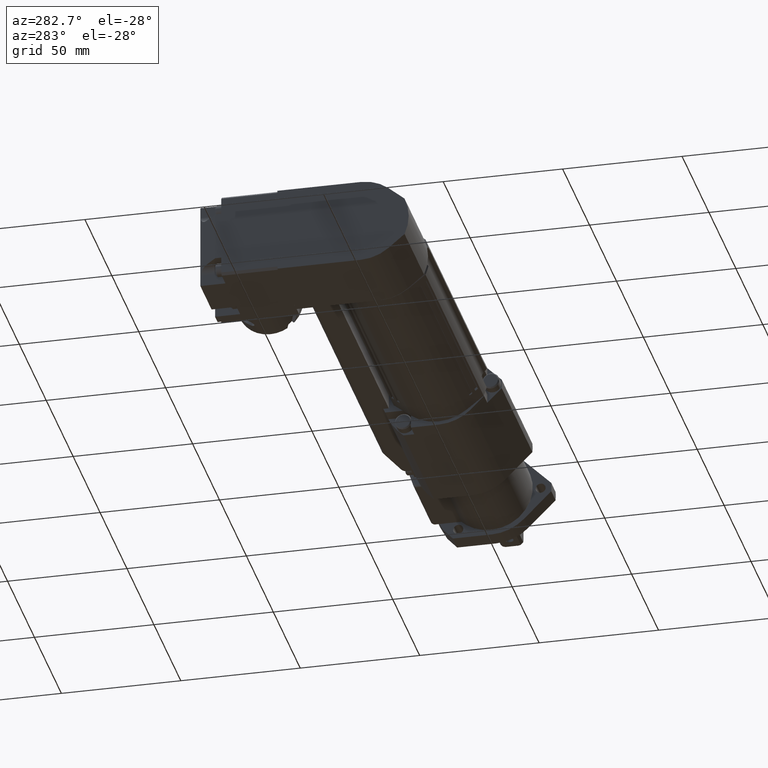
[diagram: clean part render]
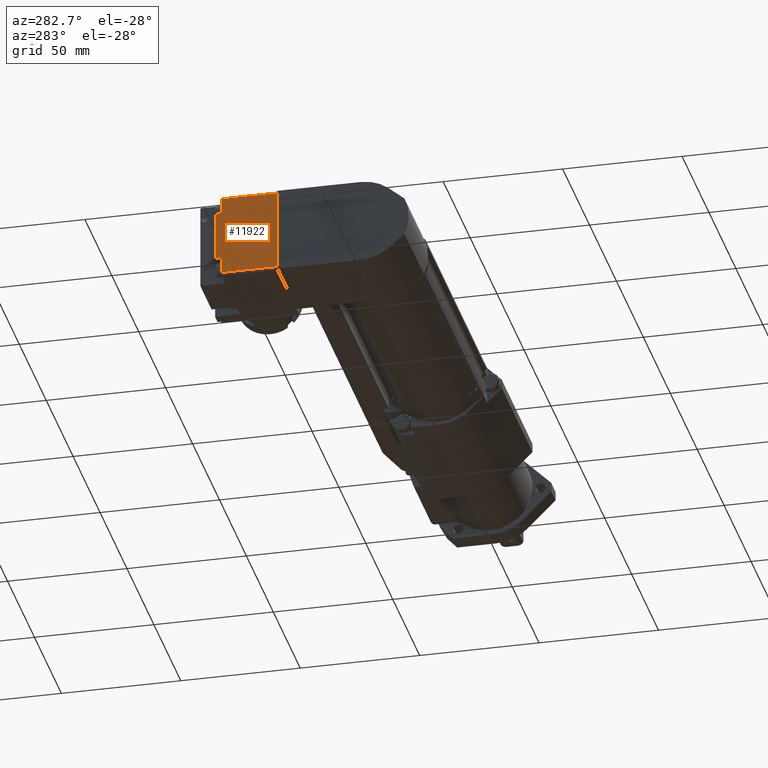
[diagram: same view with one face highlighted and labeled with its STEP entity id]
A machine part, auxiliary view. The second image highlights one B-rep face of the part: STEP entity #11922.
In plain terms, the highlighted planar face has unit normal (1, 0, 0).
Its self-contained STEP definition (entity closure, byte-faithful):
#427 = EDGE_CURVE ( 'NONE', #12029, #2674, #12368, .T. ) ;
#601 = DIRECTION ( 'NONE',  ( -0.0000000000000000000, -0.0000000000000000000, -1.000000000000000000 ) ) ;
#807 = LINE ( 'NONE', #13145, #6899 ) ;
#940 = VECTOR ( 'NONE', #10390, 1000.000000000000000 ) ;
#994 = VECTOR ( 'NONE', #9871, 1000.000000000000000 ) ;
#1229 = AXIS2_PLACEMENT_3D ( 'NONE', #13309, #6476, #14473 ) ;
#1241 = VERTEX_POINT ( 'NONE', #2743 ) ;
#1300 = VERTEX_POINT ( 'NONE', #9699 ) ;
#1493 = LINE ( 'NONE', #11988, #12572 ) ;
#1875 = CARTESIAN_POINT ( 'NONE',  ( -281.0000000000000000, 34.99620234459764800, 70.50067041932540200 ) ) ;
#1924 = DIRECTION ( 'NONE',  ( 0.0000000000000000000, -1.000000000000000000, -9.912705577010325500E-017 ) ) ;
#2172 = ORIENTED_EDGE ( 'NONE', *, *, #10613, .T. ) ;
#2640 = CARTESIAN_POINT ( 'NONE',  ( -281.0000000000000000, 58.49620234459764800, 17.00305142569864400 ) ) ;
#2674 = VERTEX_POINT ( 'NONE', #14357 ) ;
#2743 = CARTESIAN_POINT ( 'NONE',  ( -281.0000000000000000, 60.99620234459764800, 10.14538818397368800 ) ) ;
#3035 = CARTESIAN_POINT ( 'NONE',  ( -281.0000000000000000, 58.49620234459764800, -10.14538818397369500 ) ) ;
#3315 = CARTESIAN_POINT ( 'NONE',  ( -281.0000000000000000, 34.99620234459764800, 17.00305142569864700 ) ) ;
#3421 = CARTESIAN_POINT ( 'NONE',  ( -281.0000000000000000, 60.99620234459764800, -10.14538818397369200 ) ) ;
#3482 = LINE ( 'NONE', #5460, #11856 ) ;
#3841 = VECTOR ( 'NONE', #5360, 1000.000000000000000 ) ;
#3998 = ORIENTED_EDGE ( 'NONE', *, *, #5119, .T. ) ;
#4593 = CARTESIAN_POINT ( 'NONE',  ( -281.0000000000000000, 58.49620234459764800, -10.14538818397369500 ) ) ;
#4615 = LINE ( 'NONE', #3035, #11013 ) ;
#4669 = ORIENTED_EDGE ( 'NONE', *, *, #8269, .F. ) ;
#4676 = VERTEX_POINT ( 'NONE', #12318 ) ;
#5119 = EDGE_CURVE ( 'NONE', #4676, #2674, #14574, .T. ) ;
#5251 = LINE ( 'NONE', #13355, #3841 ) ;
#5360 = DIRECTION ( 'NONE',  ( -0.0000000000000000000, 1.000000000000000000, -0.0000000000000000000 ) ) ;
#5460 = CARTESIAN_POINT ( 'NONE',  ( -281.0000000000000000, 58.49620234459764800, 10.14538818397368800 ) ) ;
#6153 = EDGE_CURVE ( 'NONE', #8775, #6342, #5251, .T. ) ;
#6228 = EDGE_CURVE ( 'NONE', #1300, #11105, #3482, .T. ) ;
#6342 = VERTEX_POINT ( 'NONE', #3421 ) ;
#6476 = DIRECTION ( 'NONE',  ( 1.000000000000000000, 0.0000000000000000000, 0.0000000000000000000 ) ) ;
#6523 = EDGE_LOOP ( 'NONE', ( #4669, #3998, #12242, #12967, #8227, #2172, #8208, #10617 ) ) ;
#6712 = EDGE_CURVE ( 'NONE', #1241, #6342, #1493, .T. ) ;
#6722 = LINE ( 'NONE', #7629, #994 ) ;
#6899 = VECTOR ( 'NONE', #14310, 1000.000000000000000 ) ;
#6952 = FACE_OUTER_BOUND ( 'NONE', #6523, .T. ) ;
#7629 = CARTESIAN_POINT ( 'NONE',  ( -281.0000000000000000, 58.49620234459764800, 10.14538818397368800 ) ) ;
#8208 = ORIENTED_EDGE ( 'NONE', *, *, #6712, .T. ) ;
#8227 = ORIENTED_EDGE ( 'NONE', *, *, #6228, .F. ) ;
#8269 = EDGE_CURVE ( 'NONE', #4676, #8775, #4615, .T. ) ;
#8487 = VECTOR ( 'NONE', #1924, 1000.000000000000000 ) ;
#8775 = VERTEX_POINT ( 'NONE', #4593 ) ;
#9348 = DIRECTION ( 'NONE',  ( -0.0000000000000000000, -0.0000000000000000000, 1.000000000000000000 ) ) ;
#9699 = CARTESIAN_POINT ( 'NONE',  ( -281.0000000000000000, 58.49620234459764800, 10.14538818397368800 ) ) ;
#9871 = DIRECTION ( 'NONE',  ( -0.0000000000000000000, 1.000000000000000000, -0.0000000000000000000 ) ) ;
#10390 = DIRECTION ( 'NONE',  ( -0.0000000000000000000, -0.0000000000000000000, -1.000000000000000000 ) ) ;
#10613 = EDGE_CURVE ( 'NONE', #1300, #1241, #6722, .T. ) ;
#10617 = ORIENTED_EDGE ( 'NONE', *, *, #6153, .F. ) ;
#10994 = PLANE ( 'NONE',  #1229 ) ;
#11013 = VECTOR ( 'NONE', #9348, 1000.000000000000000 ) ;
#11105 = VERTEX_POINT ( 'NONE', #2640 ) ;
#11856 = VECTOR ( 'NONE', #12350, 1000.000000000000000 ) ;
#11922 = ADVANCED_FACE ( 'NONE', ( #6952 ), #10994, .F. ) ;
#11988 = CARTESIAN_POINT ( 'NONE',  ( -281.0000000000000000, 60.99620234459764800, 70.50067041932540200 ) ) ;
#12029 = VERTEX_POINT ( 'NONE', #3315 ) ;
#12242 = ORIENTED_EDGE ( 'NONE', *, *, #427, .F. ) ;
#12318 = CARTESIAN_POINT ( 'NONE',  ( -281.0000000000000000, 58.49620234459764800, -17.00305142569868600 ) ) ;
#12321 = CARTESIAN_POINT ( 'NONE',  ( -281.0000000000000000, 34.99620234459765600, -17.00305142569869000 ) ) ;
#12350 = DIRECTION ( 'NONE',  ( 0.0000000000000000000, 0.0000000000000000000, 1.000000000000000000 ) ) ;
#12368 = LINE ( 'NONE', #1875, #940 ) ;
#12572 = VECTOR ( 'NONE', #601, 1000.000000000000000 ) ;
#12967 = ORIENTED_EDGE ( 'NONE', *, *, #13615, .T. ) ;
#13145 = CARTESIAN_POINT ( 'NONE',  ( -281.0000000000000000, 34.99620234459763400, 17.00305142569864700 ) ) ;
#13309 = CARTESIAN_POINT ( 'NONE',  ( -281.0000000000000000, 34.99620234459764800, 70.50067041932540200 ) ) ;
#13355 = CARTESIAN_POINT ( 'NONE',  ( -281.0000000000000000, 58.49620234459764800, -10.14538818397369500 ) ) ;
#13615 = EDGE_CURVE ( 'NONE', #12029, #11105, #807, .T. ) ;
#14310 = DIRECTION ( 'NONE',  ( 0.0000000000000000000, 1.000000000000000000, -2.973811673103097200E-016 ) ) ;
#14357 = CARTESIAN_POINT ( 'NONE',  ( -281.0000000000000000, 34.99620234459764800, -17.00305142569869000 ) ) ;
#14473 = DIRECTION ( 'NONE',  ( 0.0000000000000000000, 0.0000000000000000000, -1.000000000000000000 ) ) ;
#14574 = LINE ( 'NONE', #12321, #8487 ) ;